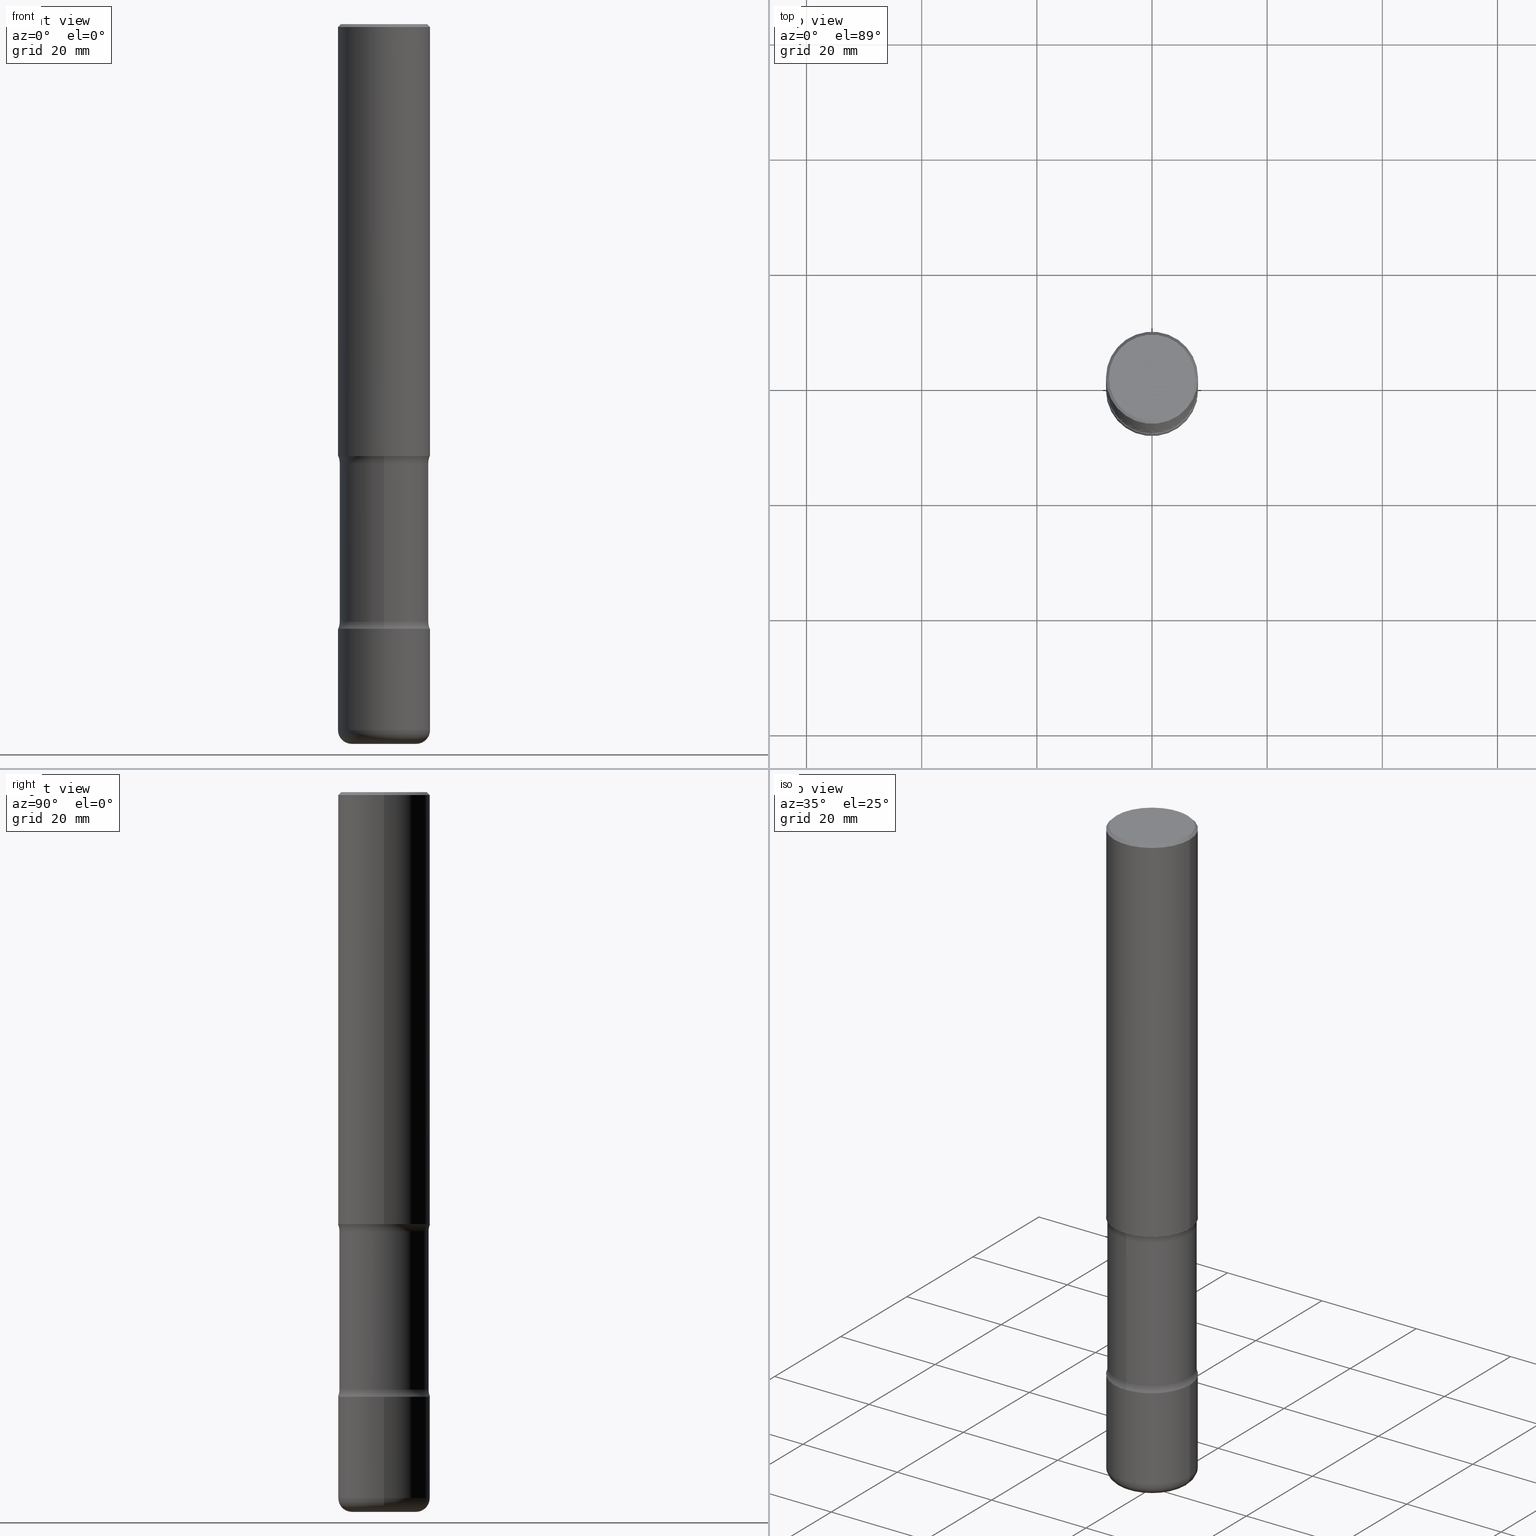
[diagram: canonical four-view strip — front | top / right | iso, engineering-drawing reading convention]
A machine part, canonical four-view strip (front | top / right | iso — engineering-drawing reading convention). The complete STEP part file that produces these views, byte-faithful:
ISO-10303-21;
HEADER;
FILE_DESCRIPTION (( 'STEP AP203' ),
    '1' );
FILE_NAME ('44968.STEP',
    '2024-03-02T04:07:08',
    ( '' ),
    ( '' ),
    'SwSTEP 2.0',
    'SolidWorks 2023',
    '' );
FILE_SCHEMA (( 'CONFIG_CONTROL_DESIGN' ));
ENDSEC;

DATA;
#1 = VERTEX_POINT ( 'NONE', #471 ) ;
#2 = APPROVAL_PERSON_ORGANIZATION ( #289, #233, #34 ) ;
#3 = CONICAL_SURFACE ( 'NONE', #410, 0.3149499999999998967, 0.7853981633974479459 ) ;
#4 = CARTESIAN_POINT ( 'NONE',  ( 7.220980290903470182E-29, -1.030964609733603853E-14, -2.952799999999999869 ) ) ;
#5 = EDGE_CURVE ( 'NONE', #423, #129, #125, .T. ) ;
#6 = CARTESIAN_POINT ( 'NONE',  ( 4.890937612370289799E-31, -6.982962677686315028E-17, -0.02000000000000006981 ) ) ;
#7 =( LENGTH_UNIT ( ) NAMED_UNIT ( * ) SI_UNIT ( $, .METRE. ) );
#8 = CARTESIAN_POINT ( 'NONE',  ( -0.2204500000000002846, -1.528629066534495470E-14, -4.826800000000001312 ) ) ;
#9 = CARTESIAN_POINT ( 'NONE',  ( 1.010932349788873450E-28, -1.443343470664368071E-14, -4.133899999999999686 ) ) ;
#10 = AXIS2_PLACEMENT_3D ( 'NONE', #6, #521, #130 ) ;
#11 = AXIS2_PLACEMENT_3D ( 'NONE', #26, #421, #418 ) ;
#12 = ORIENTED_EDGE ( 'NONE', *, *, #520, .F. ) ;
#13 = APPLICATION_PROTOCOL_DEFINITION ( 'international standard', 'config_control_design', 1994, #363 ) ;
#14 = ORIENTED_EDGE ( 'NONE', *, *, #100, .F. ) ;
#15 = FACE_OUTER_BOUND ( 'NONE', #491, .T. ) ;
#16 = ORIENTED_EDGE ( 'NONE', *, *, #226, .T. ) ;
#17 = VERTEX_POINT ( 'NONE', #243 ) ;
#18 = EDGE_CURVE ( 'NONE', #229, #518, #467, .T. ) ;
#19 = CIRCLE ( 'NONE', #357, 0.1250000000000000000 ) ;
#20 = ORGANIZATION ( 'UNSPECIFIED', 'UNSPECIFIED', '' ) ;
#21 = CARTESIAN_POINT ( 'NONE',  ( 1.213091465776199422E-28, -1.704510808787969270E-14, -4.921299999999998676 ) ) ;
#22 = CARTESIAN_POINT ( 'NONE',  ( -1.043851414335219820E-46, 1.490343170380447200E-32, 4.268512490100411279E-18 ) ) ;
#23 = APPROVAL_DATE_TIME ( #63, #233 ) ;
#24 = VERTEX_POINT ( 'NONE', #459 ) ;
#25 = PRODUCT_DEFINITION ( 'UNKNOWN', '', #186, #403 ) ;
#26 = CARTESIAN_POINT ( 'NONE',  ( 7.197422926421381501E-29, -1.068517127001083718E-14, -3.001672256956273710 ) ) ;
#27 = APPROVAL_STATUS ( 'not_yet_approved' ) ;
#28 = DIRECTION ( 'NONE',  ( 2.567425907890858451E-29, -3.316831827833398617E-15, -1.000000000000000000 ) ) ;
#29 = ADVANCED_FACE ( 'NONE', ( #156 ), #51, .F. ) ;
#30 = DIRECTION ( 'NONE',  ( 1.000000000000000000, -6.982962677686268288E-15, 4.883557194083114022E-29 ) ) ;
#31 = CARTESIAN_POINT ( 'NONE',  ( 7.202412656765479231E-29, -1.067802569216027239E-14, -3.001672256956273710 ) ) ;
#32 = CC_DESIGN_APPROVAL ( #494, ( #139 ) ) ;
#33 = CYLINDRICAL_SURFACE ( 'NONE', #455, 0.3149500000000000077 ) ;
#34 = APPROVAL_ROLE ( '' ) ;
#35 = CARTESIAN_POINT ( 'NONE',  ( 2.059624841783562880E-15, 0.2949499999999998234, -1.027678164646734974E-15 ) ) ;
#36 = FACE_OUTER_BOUND ( 'NONE', #269, .T. ) ;
#37 = CARTESIAN_POINT ( 'NONE',  ( 0.2204500000000002846, -1.872202123514471598E-14, -4.921300000000000452 ) ) ;
#38 = FACE_OUTER_BOUND ( 'NONE', #489, .T. ) ;
#39 = CARTESIAN_POINT ( 'NONE',  ( 9.989807918014305530E-29, -1.426279813349370412E-14, -4.085027743043726289 ) ) ;
#40 = CARTESIAN_POINT ( 'NONE',  ( 1.180378883369442130E-28, -1.685268212632809896E-14, -4.826800000000001312 ) ) ;
#41 = AXIS2_PLACEMENT_3D ( 'NONE', #417, #28, #158 ) ;
#42 = DIRECTION ( 'NONE',  ( 1.000000000000000000, -6.982962677686265922E-15, 0.000000000000000000 ) ) ;
#43 = LINE ( 'NONE', #220, #291 ) ;
#44 = ORIENTED_EDGE ( 'NONE', *, *, #189, .T. ) ;
#45 = CARTESIAN_POINT ( 'NONE',  ( 0.3149499999999998967, -2.230543471175006266E-15, -0.02000000000000006981 ) ) ;
#46 = ORIENTED_EDGE ( 'NONE', *, *, #296, .T. ) ;
#47 = EDGE_CURVE ( 'NONE', #536, #24, #19, .T. ) ;
#48 = ORIENTED_EDGE ( 'NONE', *, *, #466, .T. ) ;
#49 = AXIS2_PLACEMENT_3D ( 'NONE', #364, #103, #138 ) ;
#50 = DIRECTION ( 'NONE',  ( -2.445468806185136597E-29, 3.491481338843145583E-15, 1.000000000000000000 ) ) ;
#51 = TOROIDAL_SURFACE ( 'NONE', #439, 0.4300000000000000488, 0.1250000000000000000 ) ;
#52 = AXIS2_PLACEMENT_3D ( 'NONE', #198, #190, #113 ) ;
#53 = DIRECTION ( 'NONE',  ( 1.000000000000000000, 0.000000000000000000, 0.000000000000000000 ) ) ;
#54 = EDGE_CURVE ( 'NONE', #450, #108, #202, .T. ) ;
#55 = ORIENTED_EDGE ( 'NONE', *, *, #54, .F. ) ;
#56 =( CONVERSION_BASED_UNIT ( 'INCH', #131 ) LENGTH_UNIT ( ) NAMED_UNIT ( #481 ) );
#57 = EDGE_LOOP ( 'NONE', ( #228, #453, #61, #317 ) ) ;
#58 = ORIENTED_EDGE ( 'NONE', *, *, #492, .T. ) ;
#59 = ADVANCED_FACE ( 'NONE', ( #36 ), #3, .T. ) ;
#60 = COORDINATED_UNIVERSAL_TIME_OFFSET ( 5, 0, .BEHIND. ) ;
#61 = ORIENTED_EDGE ( 'NONE', *, *, #474, .T. ) ;
#62 = CIRCLE ( 'NONE', #356, 0.09449999999999980638 ) ;
#63 = DATE_AND_TIME ( #542, #118 ) ;
#64 = EDGE_CURVE ( 'NONE', #408, #262, #70, .T. ) ;
#65 = ORIENTED_EDGE ( 'NONE', *, *, #64, .T. ) ;
#66 = AXIS2_PLACEMENT_3D ( 'NONE', #97, #448, #318 ) ;
#67 = CIRCLE ( 'NONE', #553, 0.3149500000000003408 ) ;
#68 = DIRECTION ( 'NONE',  ( 6.982962677686265922E-15, 1.000000000000000000, -3.316831827833398617E-15 ) ) ;
#69 = SECURITY_CLASSIFICATION_LEVEL ( 'unclassified' ) ;
#70 = LINE ( 'NONE', #508, #477 ) ;
#71 = DIRECTION ( 'NONE',  ( 2.567425907890858451E-29, -3.316831827833398617E-15, -1.000000000000000000 ) ) ;
#72 = MANIFOLD_SOLID_BREP ( 'Body-Move/Copy2[4]', #375 ) ;
#73 = PERSON_AND_ORGANIZATION ( #472, #20 ) ;
#74 = CLOSED_SHELL ( 'NONE', ( #349, #59, #414, #442, #309, #267 ) ) ;
#75 = AXIS2_PLACEMENT_3D ( 'NONE', #39, #159, #300 ) ;
#76 = PERSON_AND_ORGANIZATION ( #472, #20 ) ;
#77 = CARTESIAN_POINT ( 'NONE',  ( 0.3149500000000001743, -1.663271880198097216E-14, -4.133899999999999686 ) ) ;
#78 = LINE ( 'NONE', #203, #152 ) ;
#79 = DIRECTION ( 'NONE',  ( 6.860497997771529985E-15, 1.000000000000000000, 0.000000000000000000 ) ) ;
#80 = APPROVAL_STATUS ( 'not_yet_approved' ) ;
#81 = CARTESIAN_POINT ( 'NONE',  ( 0.3149500000000002298, -1.250893019267332998E-14, -2.952799999999999869 ) ) ;
#82 = DIRECTION ( 'NONE',  ( -0.7071067811865472397, 2.468850131082253905E-15, -0.7071067811865477948 ) ) ;
#83 = EDGE_CURVE ( 'NONE', #365, #395, #552, .T. ) ;
#84 = DIRECTION ( 'NONE',  ( 2.567425907890858451E-29, -3.316831827833398617E-15, -1.000000000000000000 ) ) ;
#85 = CARTESIAN_POINT ( 'NONE',  ( 0.3149500000000001743, -1.905196622166539041E-14, -4.826800000000001312 ) ) ;
#86 = AXIS2_PLACEMENT_3D ( 'NONE', #482, #437, #559 ) ;
#87 = DIRECTION ( 'NONE',  ( 2.567425907890857890E-29, -3.316831827833398617E-15, -1.000000000000000000 ) ) ;
#88 = DIRECTION ( 'NONE',  ( 6.982962677686266711E-15, 1.000000000000000000, -3.582751467100673306E-15 ) ) ;
#89 = ORIENTED_EDGE ( 'NONE', *, *, #18, .F. ) ;
#90 = CC_DESIGN_PERSON_AND_ORGANIZATION_ASSIGNMENT ( #399, #452, ( #161 ) ) ;
#91 = DIRECTION ( 'NONE',  ( 1.000000000000000000, -6.982962677686268288E-15, 4.883557194083114022E-29 ) ) ;
#92 = ORIENTED_EDGE ( 'NONE', *, *, #510, .F. ) ;
#93 = TOROIDAL_SURFACE ( 'NONE', #164, 0.2204500000000002846, 0.09449999999999982025 ) ;
#94 = EDGE_CURVE ( 'NONE', #406, #450, #368, .T. ) ;
#95 = DIRECTION ( 'NONE',  ( 0.000000000000000000, 0.000000000000000000, 1.000000000000000000 ) ) ;
#96 = ORIENTED_EDGE ( 'NONE', *, *, #492, .F. ) ;
#97 = CARTESIAN_POINT ( 'NONE',  ( 0.000000000000000000, 0.000000000000000000, 0.000000000000000000 ) ) ;
#98 = ORIENTED_EDGE ( 'NONE', *, *, #5, .F. ) ;
#99 = EDGE_LOOP ( 'NONE', ( #374, #89 ) ) ;
#100 = EDGE_CURVE ( 'NONE', #1, #486, #322, .T. ) ;
#101 = DIRECTION ( 'NONE',  ( 1.000000000000000000, -6.982962677686266711E-15, 4.876176775795936353E-29 ) ) ;
#102 = ORIENTED_EDGE ( 'NONE', *, *, #373, .T. ) ;
#103 = DIRECTION ( 'NONE',  ( 2.567425907890858451E-29, -3.316831827833398617E-15, -1.000000000000000000 ) ) ;
#104 = ORIENTED_EDGE ( 'NONE', *, *, #324, .F. ) ;
#105 = CARTESIAN_POINT ( 'NONE',  ( 7.220980290903470182E-29, -1.030964609733603853E-14, -2.952799999999999869 ) ) ;
#106 = CIRCLE ( 'NONE', #476, 0.3149500000000002298 ) ;
#107 = FACE_OUTER_BOUND ( 'NONE', #440, .T. ) ;
#108 = VERTEX_POINT ( 'NONE', #538 ) ;
#109 = ADVANCED_FACE ( 'NONE', ( #282 ), #93, .T. ) ;
#110 = AXIS2_PLACEMENT_3D ( 'NONE', #167, #464, #422 ) ;
#111 = CARTESIAN_POINT ( 'NONE',  ( 7.076936758078842679E-29, -1.051592463478965167E-14, -2.952799999999999869 ) ) ;
#112 = DIRECTION ( 'NONE',  ( -2.445468806185136597E-29, 3.491481338843145583E-15, 1.000000000000000000 ) ) ;
#113 = DIRECTION ( 'NONE',  ( 6.860497997771531562E-15, 1.000000000000000000, 0.000000000000000000 ) ) ;
#114 = APPROVAL_DATE_TIME ( #336, #266 ) ;
#115 = DIRECTION ( 'NONE',  ( -1.000000000000000000, 6.982962677686265922E-15, -4.883557194083112340E-29 ) ) ;
#116 = CARTESIAN_POINT ( 'NONE',  ( 7.220980290903470182E-29, -1.030964609733603853E-14, -2.952799999999999869 ) ) ;
#117 = CIRCLE ( 'NONE', #428, 0.3149500000000001743 ) ;
#118 = LOCAL_TIME ( 23, 7, 8.000000000000000000, #407 ) ;
#119 = AXIS2_PLACEMENT_3D ( 'NONE', #31, #250, #246 ) ;
#120 = AXIS2_PLACEMENT_3D ( 'NONE', #433, #87, #216 ) ;
#121 = DIRECTION ( 'NONE',  ( -6.982962677686266711E-15, -1.000000000000000000, 3.491481338843145583E-15 ) ) ;
#122 = CARTESIAN_POINT ( 'NONE',  ( -2.160713844398043177E-15, -0.3149500000000144961, -4.133899999999998798 ) ) ;
#123 = DIRECTION ( 'NONE',  ( 1.000000000000000000, -6.982962677686260400E-15, 0.000000000000000000 ) ) ;
#124 = EDGE_CURVE ( 'NONE', #395, #262, #402, .T. ) ;
#125 = CIRCLE ( 'NONE', #110, 0.3149500000000001743 ) ;
#126 = ORIENTED_EDGE ( 'NONE', *, *, #510, .T. ) ;
#127 = DIRECTION ( 'NONE',  ( -2.445468806185136877E-29, 3.491481338843145188E-15, 1.000000000000000000 ) ) ;
#128 = CARTESIAN_POINT ( 'NONE',  ( -0.3149500000000001743, -1.340520407020945227E-14, -4.133899999999999686 ) ) ;
#129 = VERTEX_POINT ( 'NONE', #77 ) ;
#130 = DIRECTION ( 'NONE',  ( -1.000000000000000000, 6.982962677686265922E-15, 0.000000000000000000 ) ) ;
#131 = LENGTH_MEASURE_WITH_UNIT ( LENGTH_MEASURE( 0.02539999999999999897 ), #7 );
#132 = VECTOR ( 'NONE', #127, 39.37007874015748143 ) ;
#133 = CIRCLE ( 'NONE', #457, 0.09449999999999980638 ) ;
#134 = ORIENTED_EDGE ( 'NONE', *, *, #447, .T. ) ;
#135 = VERTEX_POINT ( 'NONE', #166 ) ;
#136 = ORIENTED_EDGE ( 'NONE', *, *, #124, .T. ) ;
#137 = AXIS2_PLACEMENT_3D ( 'NONE', #235, #419, #507 ) ;
#138 = DIRECTION ( 'NONE',  ( 6.982962677686265133E-15, 1.000000000000000000, -3.582751467100671728E-15 ) ) ;
#139 = SECURITY_CLASSIFICATION ( '', '', #69 ) ;
#140 = AXIS2_PLACEMENT_3D ( 'NONE', #40, #541, #91 ) ;
#141 = VERTEX_POINT ( 'NONE', #252 ) ;
#142 = APPLICATION_CONTEXT ( 'configuration controlled 3d designs of mechanical parts and assemblies' ) ;
#143 = CARTESIAN_POINT ( 'NONE',  ( -0.3149499999999998967, 2.129454468560425784E-15, -0.02000000000000006981 ) ) ;
#144 = ORIENTED_EDGE ( 'NONE', *, *, #513, .T. ) ;
#145 = ADVANCED_FACE ( 'NONE', ( #340 ), #173, .T. ) ;
#146 = DIRECTION ( 'NONE',  ( 1.000000000000000000, -6.982962677686267499E-15, 4.876053491004737710E-29 ) ) ;
#147 = PERSON_AND_ORGANIZATION ( #472, #20 ) ;
#148 = ORIENTED_EDGE ( 'NONE', *, *, #474, .F. ) ;
#149 = DIRECTION ( 'NONE',  ( 1.000000000000000000, -6.982962677686265922E-15, 4.876176775795935793E-29 ) ) ;
#150 = PERSON_AND_ORGANIZATION_ROLE ( 'design_supplier' ) ;
#151 = DIRECTION ( 'NONE',  ( 1.000000000000000000, -6.860497997771530774E-15, 4.842937719270450124E-29 ) ) ;
#152 = VECTOR ( 'NONE', #82, 39.37007874015748143 ) ;
#153 = CARTESIAN_POINT ( 'NONE',  ( 7.197422926421381501E-29, -1.068517127001083718E-14, -3.001672256956273710 ) ) ;
#154 = DIRECTION ( 'NONE',  ( -2.445468806185136597E-29, 3.491481338843145583E-15, 1.000000000000000000 ) ) ;
#155 = COORDINATED_UNIVERSAL_TIME_OFFSET ( 5, 0, .BEHIND. ) ;
#156 = FACE_OUTER_BOUND ( 'NONE', #57, .T. ) ;
#157 = CARTESIAN_POINT ( 'NONE',  ( -2.092451889320195532E-15, -0.3050000000000170908, -4.921299999999997787 ) ) ;
#158 = DIRECTION ( 'NONE',  ( 6.982962677686264344E-15, 1.000000000000000000, -3.469564049740291192E-15 ) ) ;
#159 = DIRECTION ( 'NONE',  ( 2.567425907890858451E-29, -3.316831827833398617E-15, -1.000000000000000000 ) ) ;
#160 = ORIENTED_EDGE ( 'NONE', *, *, #396, .F. ) ;
#161 = PRODUCT ( '44968', '44968', '', ( #488 ) ) ;
#162 = CARTESIAN_POINT ( 'NONE',  ( 0.3149500000000000077, -2.199284095337289871E-15, 1.535751875536930130E-29 ) ) ;
#163 = AXIS2_PLACEMENT_3D ( 'NONE', #169, #259, #209 ) ;
#164 = AXIS2_PLACEMENT_3D ( 'NONE', #506, #112, #30 ) ;
#165 = CIRCLE ( 'NONE', #137, 0.3049999999999999933 ) ;
#166 = CARTESIAN_POINT ( 'NONE',  ( 2.199284095337391634E-15, 0.3149499999999856859, -4.133900000000000574 ) ) ;
#167 = CARTESIAN_POINT ( 'NONE',  ( 1.010932349788873450E-28, -1.443343470664368071E-14, -4.133899999999999686 ) ) ;
#168 = DIRECTION ( 'NONE',  ( 2.567425907890858451E-29, -3.316831827833398617E-15, -1.000000000000000000 ) ) ;
#169 = CARTESIAN_POINT ( 'NONE',  ( 1.010932349788873450E-28, -1.443343470664368071E-14, -4.133899999999999686 ) ) ;
#170 = CARTESIAN_POINT ( 'NONE',  ( -2.203384679623131718E-28, -6.597099102745951621E-14, -4.921299999999999564 ) ) ;
#171 = ADVANCED_FACE ( 'NONE', ( #377 ), #271, .F. ) ;
#172 = CARTESIAN_POINT ( 'NONE',  ( 3.002673951405194792E-15, 0.4299999999999857825, -4.085027743043728066 ) ) ;
#173 = PLANE ( 'NONE',  #430 ) ;
#174 = PRODUCT_RELATED_PRODUCT_CATEGORY ( 'detail', '', ( #161 ) ) ;
#175 = ORIENTED_EDGE ( 'NONE', *, *, #527, .F. ) ;
#176 = FACE_OUTER_BOUND ( 'NONE', #390, .T. ) ;
#177 =( NAMED_UNIT ( * ) SI_UNIT ( $, .STERADIAN. ) SOLID_ANGLE_UNIT ( ) );
#178 = ORIENTED_EDGE ( 'NONE', *, *, #454, .F. ) ;
#179 = ORIENTED_EDGE ( 'NONE', *, *, #286, .T. ) ;
#180 = TOROIDAL_SURFACE ( 'NONE', #281, 0.4299999999999999933, 0.1249999999999999029 ) ;
#181 = ORIENTED_EDGE ( 'NONE', *, *, #286, .F. ) ;
#182 = EDGE_CURVE ( 'NONE', #450, #141, #420, .T. ) ;
#183 = ORIENTED_EDGE ( 'NONE', *, *, #226, .F. ) ;
#184 = DIRECTION ( 'NONE',  ( -2.445468806185136597E-29, 3.491481338843145583E-15, 1.000000000000000000 ) ) ;
#185 = EDGE_LOOP ( 'NONE', ( #12, #241, #46, #148 ) ) ;
#186 = PRODUCT_DEFINITION_FORMATION_WITH_SPECIFIED_SOURCE ( 'ANY', '', #161, .NOT_KNOWN. ) ;
#187 = CIRCLE ( 'NONE', #502, 0.3149500000000003408 ) ;
#188 = ORIENTED_EDGE ( 'NONE', *, *, #353, .T. ) ;
#189 = EDGE_CURVE ( 'NONE', #262, #395, #485, .T. ) ;
#190 = DIRECTION ( 'NONE',  ( 1.000000000000000000, -6.860497997771530774E-15, 4.842937719270450124E-29 ) ) ;
#191 = PERSON_AND_ORGANIZATION_ROLE ( 'creator' ) ;
#192 = EDGE_LOOP ( 'NONE', ( #227, #413 ) ) ;
#193 = APPROVAL_ROLE ( '' ) ;
#194 = CYLINDRICAL_SURFACE ( 'NONE', #409, 0.3050000000000000488 ) ;
#195 = CARTESIAN_POINT ( 'NONE',  ( 4.890937612370289799E-31, -6.982962677686315028E-17, -0.02000000000000006981 ) ) ;
#196 = FACE_OUTER_BOUND ( 'NONE', #529, .T. ) ;
#197 = ORIENTED_EDGE ( 'NONE', *, *, #64, .F. ) ;
#198 = CARTESIAN_POINT ( 'NONE',  ( -2.950014139041686281E-15, -0.4300000000000106515, -3.001672256956271934 ) ) ;
#199 = CC_DESIGN_APPROVAL ( #233, ( #186 ) ) ;
#200 = APPROVAL_ROLE ( '' ) ;
#201 = CARTESIAN_POINT ( 'NONE',  ( 1.203488563587891594E-28, -1.718262711284877655E-14, -4.921300000000000452 ) ) ;
#202 = CIRCLE ( 'NONE', #223, 0.1249999999999999029 ) ;
#203 = CARTESIAN_POINT ( 'NONE',  ( -0.3149499999999998967, 2.129454468560425784E-15, -0.02000000000000006981 ) ) ;
#204 = PLANE ( 'NONE',  #441 ) ;
#205 = ADVANCED_FACE ( 'NONE', ( #249 ), #258, .F. ) ;
#206 = DIRECTION ( 'NONE',  ( 2.445468806185136597E-29, -3.491481338843145583E-15, -1.000000000000000000 ) ) ;
#207 = CC_DESIGN_DATE_AND_TIME_ASSIGNMENT ( #208, #251, ( #139 ) ) ;
#208 = DATE_AND_TIME ( #294, #465 ) ;
#209 = DIRECTION ( 'NONE',  ( -1.000000000000000000, 6.982962677686265922E-15, -4.876176775795935793E-29 ) ) ;
#210 = DIRECTION ( 'NONE',  ( 2.567425907890858451E-29, -3.316831827833398617E-15, -1.000000000000000000 ) ) ;
#211 = CARTESIAN_POINT ( 'NONE',  ( 0.2204500000000002846, -1.839207624862403839E-14, -4.826800000000001312 ) ) ;
#212 = CARTESIAN_POINT ( 'NONE',  ( 9.989807918014305530E-29, -1.426279813349370412E-14, -4.085027743043726289 ) ) ;
#213 = CIRCLE ( 'NONE', #265, 0.3149500000000001743 ) ;
#214 = DIRECTION ( 'NONE',  ( 2.567425907890858451E-29, -3.316831827833398617E-15, -1.000000000000000000 ) ) ;
#215 = EDGE_CURVE ( 'NONE', #486, #262, #78, .T. ) ;
#216 = DIRECTION ( 'NONE',  ( 6.982962677686265922E-15, 1.000000000000000000, -3.316831827833398617E-15 ) ) ;
#217 = DIRECTION ( 'NONE',  ( 2.567425907890858451E-29, -3.316831827833398617E-15, -1.000000000000000000 ) ) ;
#218 = ORIENTED_EDGE ( 'NONE', *, *, #324, .T. ) ;
#219 = DIRECTION ( 'NONE',  ( 0.7071067811865472397, -7.319954787623254468E-15, -0.7071067811865477948 ) ) ;
#220 = CARTESIAN_POINT ( 'NONE',  ( 0.3149500000000001743, -2.199284095337290660E-15, 1.535751875536930690E-29 ) ) ;
#221 = CARTESIAN_POINT ( 'NONE',  ( 1.010932349788873450E-28, -1.443343470664368071E-14, -4.133899999999999686 ) ) ;
#222 = CIRCLE ( 'NONE', #382, 0.3149500000000001743 ) ;
#223 = AXIS2_PLACEMENT_3D ( 'NONE', #285, #115, #253 ) ;
#224 = CARTESIAN_POINT ( 'NONE',  ( -2.126582866859160770E-15, -0.3050000000000108180, -3.001672256956272378 ) ) ;
#225 = AXIS2_PLACEMENT_3D ( 'NONE', #451, #444, #101 ) ;
#226 = EDGE_CURVE ( 'NONE', #408, #365, #393, .T. ) ;
#227 = ORIENTED_EDGE ( 'NONE', *, *, #315, .T. ) ;
#228 = ORIENTED_EDGE ( 'NONE', *, *, #47, .F. ) ;
#229 = VERTEX_POINT ( 'NONE', #327 ) ;
#230 = AXIS2_PLACEMENT_3D ( 'NONE', #361, #95, #53 ) ;
#231 = ADVANCED_FACE ( 'NONE', ( #107 ), #306, .T. ) ;
#232 = ORIENTED_EDGE ( 'NONE', *, *, #215, .T. ) ;
#233 = APPROVAL ( #27, 'UNSPECIFIED' ) ;
#234 = ORIENTED_EDGE ( 'NONE', *, *, #83, .F. ) ;
#235 = CARTESIAN_POINT ( 'NONE',  ( 9.983847599202101310E-29, -1.427133364927305841E-14, -4.085027743043726289 ) ) ;
#236 = CALENDAR_DATE ( 2024, 1, 3 ) ;
#237 = EDGE_LOOP ( 'NONE', ( #539, #480 ) ) ;
#238 = VECTOR ( 'NONE', #219, 39.37007874015748143 ) ;
#239 = AXIS2_PLACEMENT_3D ( 'NONE', #463, #499, #341 ) ;
#240 = LOCAL_TIME ( 23, 7, 8.000000000000000000, #155 ) ;
#241 = ORIENTED_EDGE ( 'NONE', *, *, #47, .T. ) ;
#242 = CALENDAR_DATE ( 2024, 1, 3 ) ;
#243 = CARTESIAN_POINT ( 'NONE',  ( -0.3149500000000001743, -1.461482778005166298E-14, -4.826800000000001312 ) ) ;
#244 = PERSON_AND_ORGANIZATION_ROLE ( 'classification_officer' ) ;
#245 = DIRECTION ( 'NONE',  ( 6.982962677686265133E-15, 1.000000000000000000, -3.582751467100672517E-15 ) ) ;
#246 = DIRECTION ( 'NONE',  ( 6.982962677686265133E-15, 1.000000000000000000, -3.582751467100671728E-15 ) ) ;
#247 = DIRECTION ( 'NONE',  ( 6.982962677686265922E-15, 1.000000000000000000, -3.316831827833398617E-15 ) ) ;
#248 = ADVANCED_FACE ( 'NONE', ( #196 ), #398, .T. ) ;
#249 = FACE_OUTER_BOUND ( 'NONE', #497, .T. ) ;
#250 = DIRECTION ( 'NONE',  ( 2.567425907890858451E-29, -3.316831827833398617E-15, -1.000000000000000000 ) ) ;
#251 = DATE_TIME_ROLE ( 'classification_date' ) ;
#252 = CARTESIAN_POINT ( 'NONE',  ( 2.129803616694410664E-15, 0.3049999999999857270, -4.085027743043728066 ) ) ;
#253 = DIRECTION ( 'NONE',  ( -6.982962677686264344E-15, -1.000000000000000000, 0.000000000000000000 ) ) ;
#254 = DATE_AND_TIME ( #504, #456 ) ;
#255 = FACE_OUTER_BOUND ( 'NONE', #400, .T. ) ;
#256 = EDGE_CURVE ( 'NONE', #229, #17, #133, .T. ) ;
#257 = CC_DESIGN_PERSON_AND_ORGANIZATION_ASSIGNMENT ( #328, #150, ( #186 ) ) ;
#258 = TOROIDAL_SURFACE ( 'NONE', #11, 0.4299999999999999933, 0.1249999999999999029 ) ;
#259 = DIRECTION ( 'NONE',  ( 2.438088387897960049E-29, -3.491481338843145188E-15, -1.000000000000000000 ) ) ;
#260 = DIRECTION ( 'NONE',  ( 2.438088387897960049E-29, -3.491481338843145188E-15, -1.000000000000000000 ) ) ;
#261 = CARTESIAN_POINT ( 'NONE',  ( 9.983847599202101310E-29, -1.427133364927305841E-14, -4.085027743043726289 ) ) ;
#262 = VERTEX_POINT ( 'NONE', #143 ) ;
#263 = ADVANCED_FACE ( 'NONE', ( #354 ), #525, .F. ) ;
#264 = ORIENTED_EDGE ( 'NONE', *, *, #396, .T. ) ;
#265 = AXIS2_PLACEMENT_3D ( 'NONE', #221, #214, #385 ) ;
#266 = APPROVAL ( #283, 'UNSPECIFIED' ) ;
#267 = ADVANCED_FACE ( 'NONE', ( #15 ), #360, .T. ) ;
#268 = UNCERTAINTY_MEASURE_WITH_UNIT (LENGTH_MEASURE( 1.000000000000000082E-05 ), #56, 'distance_accuracy_value', 'NONE');
#269 = EDGE_LOOP ( 'NONE', ( #14, #264, #136, #496 ) ) ;
#270 = CC_DESIGN_PERSON_AND_ORGANIZATION_ASSIGNMENT ( #147, #191, ( #186 ) ) ;
#271 = TOROIDAL_SURFACE ( 'NONE', #75, 0.4300000000000000488, 0.1250000000000000000 ) ;
#272 = DIRECTION ( 'NONE',  ( -6.982962677686265922E-15, -1.000000000000000000, 3.316831827833398617E-15 ) ) ;
#273 = ORIENTED_EDGE ( 'NONE', *, *, #18, .T. ) ;
#274 = DIRECTION ( 'NONE',  ( 1.000000000000000000, -6.982962677686272233E-15, 0.000000000000000000 ) ) ;
#275 = EDGE_LOOP ( 'NONE', ( #404, #183 ) ) ;
#276 = CARTESIAN_POINT ( 'NONE',  ( 1.203488563587891594E-28, -1.718262711284877655E-14, -4.921300000000000452 ) ) ;
#277 = EDGE_CURVE ( 'NONE', #518, #229, #468, .T. ) ;
#278 = DATE_AND_TIME ( #236, #314 ) ;
#279 = EDGE_LOOP ( 'NONE', ( #92, #334, #371, #533 ) ) ;
#280 = APPROVAL_DATE_TIME ( #254, #494 ) ;
#281 = AXIS2_PLACEMENT_3D ( 'NONE', #153, #71, #68 ) ;
#282 = FACE_OUTER_BOUND ( 'NONE', #319, .T. ) ;
#283 = APPROVAL_STATUS ( 'not_yet_approved' ) ;
#284 = PLANE ( 'NONE',  #293 ) ;
#285 = CARTESIAN_POINT ( 'NONE',  ( 3.002673951405166393E-15, 0.4299999999999893352, -3.001672256956275042 ) ) ;
#286 = EDGE_CURVE ( 'NONE', #450, #406, #526, .T. ) ;
#287 = DIRECTION ( 'NONE',  ( -2.438088387897960049E-29, 3.491481338843145188E-15, 1.000000000000000000 ) ) ;
#288 = DIRECTION ( 'NONE',  ( -1.000000000000000000, 6.982962677686265922E-15, -4.876176775795935793E-29 ) ) ;
#289 = PERSON_AND_ORGANIZATION ( #472, #20 ) ;
#290 = DIRECTION ( 'NONE',  ( -2.445468806185136877E-29, 3.491481338843145188E-15, 1.000000000000000000 ) ) ;
#291 = VECTOR ( 'NONE', #427, 39.37007874015748143 ) ;
#292 = DIRECTION ( 'NONE',  ( -2.445468806185136597E-29, 3.491481338843145583E-15, 1.000000000000000000 ) ) ;
#293 = AXIS2_PLACEMENT_3D ( 'NONE', #105, #287, #149 ) ;
#294 = CALENDAR_DATE ( 2024, 1, 3 ) ;
#295 = DIRECTION ( 'NONE',  ( -2.445468806185136597E-29, 3.491481338843145583E-15, 1.000000000000000000 ) ) ;
#296 = EDGE_CURVE ( 'NONE', #24, #141, #165, .T. ) ;
#297 = DIRECTION ( 'NONE',  ( 1.000000000000000000, -6.982962677686265922E-15, 0.000000000000000000 ) ) ;
#298 = ORIENTED_EDGE ( 'NONE', *, *, #373, .F. ) ;
#299 = DIRECTION ( 'NONE',  ( 2.567425907890858451E-29, -3.316831827833398617E-15, -1.000000000000000000 ) ) ;
#300 = DIRECTION ( 'NONE',  ( 6.982962677686265922E-15, 1.000000000000000000, -3.316831827833398617E-15 ) ) ;
#301 = DIRECTION ( 'NONE',  ( -6.982962677686266711E-15, -1.000000000000000000, 0.000000000000000000 ) ) ;
#302 = ADVANCED_FACE ( 'NONE', ( #412 ), #194, .T. ) ;
#303 = DIRECTION ( 'NONE',  ( -2.445468806185136597E-29, 3.491481338843145583E-15, 1.000000000000000000 ) ) ;
#304 = CARTESIAN_POINT ( 'NONE',  ( -0.2949499999999998234, 2.094539655171994135E-15, 4.268512490085885145E-18 ) ) ;
#305 = AXIS2_PLACEMENT_3D ( 'NONE', #560, #516, #551 ) ;
#306 = TOROIDAL_SURFACE ( 'NONE', #140, 0.2204500000000002846, 0.09449999999999982025 ) ;
#307 = DIRECTION ( 'NONE',  ( 1.000000000000000000, -6.982962677686265922E-15, 0.000000000000000000 ) ) ;
#308 = EDGE_LOOP ( 'NONE', ( #355, #370 ) ) ;
#309 = ADVANCED_FACE ( 'NONE', ( #540 ), #284, .F. ) ;
#310 = CYLINDRICAL_SURFACE ( 'NONE', #86, 0.3050000000000000488 ) ;
#311 = VERTEX_POINT ( 'NONE', #376 ) ;
#312 = CIRCLE ( 'NONE', #534, 0.3049999999999999933 ) ;
#313 = AXIS2_PLACEMENT_3D ( 'NONE', #116, #292, #333 ) ;
#314 = LOCAL_TIME ( 23, 7, 8.000000000000000000, #60 ) ;
#315 = EDGE_CURVE ( 'NONE', #135, #536, #484, .T. ) ;
#316 =( NAMED_UNIT ( * ) PLANE_ANGLE_UNIT ( ) SI_UNIT ( $, .RADIAN. ) );
#317 = ORIENTED_EDGE ( 'NONE', *, *, #424, .T. ) ;
#318 = DIRECTION ( 'NONE',  ( 1.000000000000000000, -6.982962677686265922E-15, 4.876176775795935232E-29 ) ) ;
#319 = EDGE_LOOP ( 'NONE', ( #392, #273, #134, #96 ) ) ;
#320 = DIRECTION ( 'NONE',  ( -2.445468806185136877E-29, 3.491481338843145188E-15, 1.000000000000000000 ) ) ;
#321 = ORIENTED_EDGE ( 'NONE', *, *, #483, .F. ) ;
#322 = CIRCLE ( 'NONE', #511, 0.2949499999999998234 ) ;
#323 = EDGE_LOOP ( 'NONE', ( #179, #126, #342, #350 ) ) ;
#324 = EDGE_CURVE ( 'NONE', #406, #311, #330, .T. ) ;
#325 = ORIENTED_EDGE ( 'NONE', *, *, #537, .T. ) ;
#326 = SHAPE_DEFINITION_REPRESENTATION ( #347, #522 ) ;
#327 = CARTESIAN_POINT ( 'NONE',  ( -0.2204500000000002846, -1.511553171595864605E-14, -4.921300000000000452 ) ) ;
#328 = PERSON_AND_ORGANIZATION ( #472, #20 ) ;
#329 = ORIENTED_EDGE ( 'NONE', *, *, #256, .T. ) ;
#330 = CIRCLE ( 'NONE', #52, 0.1249999999999999029 ) ;
#331 = FACE_OUTER_BOUND ( 'NONE', #523, .T. ) ;
#332 = AXIS2_PLACEMENT_3D ( 'NONE', #9, #358, #272 ) ;
#333 = DIRECTION ( 'NONE',  ( 1.000000000000000000, -6.982962677686264344E-15, 0.000000000000000000 ) ) ;
#334 = ORIENTED_EDGE ( 'NONE', *, *, #94, .T. ) ;
#335 = ADVANCED_FACE ( 'NONE', ( #546 ), #180, .F. ) ;
#336 = DATE_AND_TIME ( #242, #240 ) ;
#337 = DIRECTION ( 'NONE',  ( -1.000000000000000000, 6.982962677686265922E-15, 0.000000000000000000 ) ) ;
#338 = CARTESIAN_POINT ( 'NONE',  ( 2.129803616694383843E-15, 0.3049999999999893907, -3.001672256956274598 ) ) ;
#339 = CONICAL_SURFACE ( 'NONE', #10, 0.3149499999999998967, 0.7853981633974479459 ) ;
#340 = FACE_OUTER_BOUND ( 'NONE', #99, .T. ) ;
#341 = DIRECTION ( 'NONE',  ( 1.000000000000000000, -6.982962677686265922E-15, 0.000000000000000000 ) ) ;
#342 = ORIENTED_EDGE ( 'NONE', *, *, #424, .F. ) ;
#343 = AXIS2_PLACEMENT_3D ( 'NONE', #515, #391, #557 ) ;
#344 = DIRECTION ( 'NONE',  ( 6.982962677686265922E-15, 1.000000000000000000, -3.469564049740289220E-15 ) ) ;
#345 = LINE ( 'NONE', #45, #238 ) ;
#346 = DIRECTION ( 'NONE',  ( 2.438088387897960049E-29, -3.491481338843145188E-15, -1.000000000000000000 ) ) ;
#347 = PRODUCT_DEFINITION_SHAPE ( 'NONE', 'NONE',  #25 ) ;
#348 = CARTESIAN_POINT ( 'NONE',  ( 0.000000000000000000, 0.000000000000000000, 0.000000000000000000 ) ) ;
#349 = ADVANCED_FACE ( 'NONE', ( #331 ), #33, .T. ) ;
#350 = ORIENTED_EDGE ( 'NONE', *, *, #182, .F. ) ;
#351 = AXIS2_PLACEMENT_3D ( 'NONE', #201, #379, #416 ) ;
#352 = ORIENTED_EDGE ( 'NONE', *, *, #124, .F. ) ;
#353 = EDGE_CURVE ( 'NONE', #108, #311, #67, .T. ) ;
#354 = FACE_OUTER_BOUND ( 'NONE', #192, .T. ) ;
#355 = ORIENTED_EDGE ( 'NONE', *, *, #483, .T. ) ;
#356 = AXIS2_PLACEMENT_3D ( 'NONE', #211, #121, #123 ) ;
#357 = AXIS2_PLACEMENT_3D ( 'NONE', #543, #151, #79 ) ;
#358 = DIRECTION ( 'NONE',  ( -2.567425907890857890E-29, 3.316831827833398617E-15, 1.000000000000000000 ) ) ;
#359 = ORIENTED_EDGE ( 'NONE', *, *, #466, .F. ) ;
#360 = CYLINDRICAL_SURFACE ( 'NONE', #225, 0.3149500000000000077 ) ;
#361 = CARTESIAN_POINT ( 'NONE',  ( 0.000000000000000000, 0.000000000000000000, 0.000000000000000000 ) ) ;
#362 = ORIENTED_EDGE ( 'NONE', *, *, #277, .T. ) ;
#363 = APPLICATION_CONTEXT ( 'configuration controlled 3d designs of mechanical parts and assemblies' ) ;
#364 = CARTESIAN_POINT ( 'NONE',  ( 7.202412656765479231E-29, -1.067802569216027239E-14, -3.001672256956273710 ) ) ;
#365 = VERTEX_POINT ( 'NONE', #81 ) ;
#366 = ADVANCED_FACE ( 'NONE', ( #519 ), #475, .F. ) ;
#367 = CIRCLE ( 'NONE', #305, 0.2949499999999998234 ) ;
#368 = CIRCLE ( 'NONE', #119, 0.3050000000000001044 ) ;
#369 = AXIS2_PLACEMENT_3D ( 'NONE', #276, #184, #274 ) ;
#370 = ORIENTED_EDGE ( 'NONE', *, *, #100, .T. ) ;
#371 = ORIENTED_EDGE ( 'NONE', *, *, #182, .T. ) ;
#372 = COORDINATED_UNIVERSAL_TIME_OFFSET ( 5, 0, .BEHIND. ) ;
#373 = EDGE_CURVE ( 'NONE', #17, #423, #381, .T. ) ;
#374 = ORIENTED_EDGE ( 'NONE', *, *, #277, .F. ) ;
#375 = CLOSED_SHELL ( 'NONE', ( #405, #171, #205, #335, #366, #263, #29, #302 ) ) ;
#376 = CARTESIAN_POINT ( 'NONE',  ( -2.160713844398075521E-15, -0.3149500000000107769, -2.952799999999998537 ) ) ;
#377 = FACE_OUTER_BOUND ( 'NONE', #185, .T. ) ;
#378 = CARTESIAN_POINT ( 'NONE',  ( 1.180378883369442130E-28, -1.685268212632809896E-14, -4.826800000000001312 ) ) ;
#379 = DIRECTION ( 'NONE',  ( -2.445468806185136597E-29, 3.491481338843145583E-15, 1.000000000000000000 ) ) ;
#380 = ADVANCED_FACE ( 'NONE', ( #38 ), #558, .F. ) ;
#381 = LINE ( 'NONE', #386, #132 ) ;
#382 = AXIS2_PLACEMENT_3D ( 'NONE', #378, #509, #297 ) ;
#383 = DIRECTION ( 'NONE',  ( -1.000000000000000000, 6.982962677686265922E-15, -4.883557194083112340E-29 ) ) ;
#384 = AXIS2_PLACEMENT_3D ( 'NONE', #348, #50, #431 ) ;
#385 = DIRECTION ( 'NONE',  ( 6.982962677686264344E-15, 1.000000000000000000, -3.469564049740291192E-15 ) ) ;
#386 = CARTESIAN_POINT ( 'NONE',  ( -0.3149500000000001743, 2.237854346276436774E-15, -1.549218606675783237E-29 ) ) ;
#387 = DIRECTION ( 'NONE',  ( -2.445468806185136597E-29, 3.491481338843145583E-15, 1.000000000000000000 ) ) ;
#388 = FACE_OUTER_BOUND ( 'NONE', #323, .T. ) ;
#389 = ADVANCED_FACE ( 'NONE', ( #255 ), #425, .T. ) ;
#390 = EDGE_LOOP ( 'NONE', ( #160, #321, #232, #44 ) ) ;
#391 = DIRECTION ( 'NONE',  ( -2.445468806185136597E-29, 3.491481338843145583E-15, 1.000000000000000000 ) ) ;
#392 = ORIENTED_EDGE ( 'NONE', *, *, #256, .F. ) ;
#393 = CIRCLE ( 'NONE', #313, 0.3149500000000002298 ) ;
#394 = CARTESIAN_POINT ( 'NONE',  ( -0.3149500000000002298, -2.951883515780010590E-15, -2.952799999999999869 ) ) ;
#395 = VERTEX_POINT ( 'NONE', #478 ) ;
#396 = EDGE_CURVE ( 'NONE', #1, #395, #345, .T. ) ;
#397 = ORIENTED_EDGE ( 'NONE', *, *, #94, .F. ) ;
#398 = CYLINDRICAL_SURFACE ( 'NONE', #66, 0.3149500000000001743 ) ;
#399 = PERSON_AND_ORGANIZATION ( #472, #20 ) ;
#400 = EDGE_LOOP ( 'NONE', ( #298, #58, #48, #98 ) ) ;
#401 =( GEOMETRIC_REPRESENTATION_CONTEXT ( 3 ) GLOBAL_UNCERTAINTY_ASSIGNED_CONTEXT ( ( #268 ) ) GLOBAL_UNIT_ASSIGNED_CONTEXT ( ( #56, #316, #177 ) ) REPRESENTATION_CONTEXT ( 'NONE', 'WORKASPACE' ) );
#402 = CIRCLE ( 'NONE', #517, 0.3149499999999998967 ) ;
#403 = DESIGN_CONTEXT ( 'detailed design', #142, 'design' ) ;
#404 = ORIENTED_EDGE ( 'NONE', *, *, #537, .F. ) ;
#405 = ADVANCED_FACE ( 'NONE', ( #388 ), #310, .T. ) ;
#406 = VERTEX_POINT ( 'NONE', #224 ) ;
#407 = COORDINATED_UNIVERSAL_TIME_OFFSET ( 5, 0, .BEHIND. ) ;
#408 = VERTEX_POINT ( 'NONE', #394 ) ;
#409 = AXIS2_PLACEMENT_3D ( 'NONE', #21, #550, #245 ) ;
#410 = AXIS2_PLACEMENT_3D ( 'NONE', #461, #206, #337 ) ;
#411 = VECTOR ( 'NONE', #299, 39.37007874015748143 ) ;
#412 = FACE_OUTER_BOUND ( 'NONE', #279, .T. ) ;
#413 = ORIENTED_EDGE ( 'NONE', *, *, #520, .T. ) ;
#414 = ADVANCED_FACE ( 'NONE', ( #176 ), #339, .T. ) ;
#415 = DATE_TIME_ROLE ( 'creation_date' ) ;
#416 = DIRECTION ( 'NONE',  ( 1.000000000000000000, -6.982962677686272233E-15, 0.000000000000000000 ) ) ;
#417 = CARTESIAN_POINT ( 'NONE',  ( 1.010932349788873450E-28, -1.443343470664368071E-14, -4.133899999999999686 ) ) ;
#418 = DIRECTION ( 'NONE',  ( 6.982962677686265922E-15, 1.000000000000000000, -3.316831827833398617E-15 ) ) ;
#419 = DIRECTION ( 'NONE',  ( 2.567425907890858451E-29, -3.316831827833398617E-15, -1.000000000000000000 ) ) ;
#420 = LINE ( 'NONE', #426, #503 ) ;
#421 = DIRECTION ( 'NONE',  ( 2.567425907890858451E-29, -3.316831827833398617E-15, -1.000000000000000000 ) ) ;
#422 = DIRECTION ( 'NONE',  ( 1.000000000000000000, -6.982962677686265922E-15, 0.000000000000000000 ) ) ;
#423 = VERTEX_POINT ( 'NONE', #128 ) ;
#424 = EDGE_CURVE ( 'NONE', #141, #24, #312, .T. ) ;
#425 = CYLINDRICAL_SURFACE ( 'NONE', #384, 0.3149500000000001743 ) ;
#426 = CARTESIAN_POINT ( 'NONE',  ( 2.129803616694432752E-15, 0.3049999999999830069, -4.921299999999999564 ) ) ;
#427 = DIRECTION ( 'NONE',  ( -2.445468806185136877E-29, 3.491481338843145188E-15, 1.000000000000000000 ) ) ;
#428 = AXIS2_PLACEMENT_3D ( 'NONE', #429, #387, #307 ) ;
#429 = CARTESIAN_POINT ( 'NONE',  ( 1.180378883369442130E-28, -1.685268212632809896E-14, -4.826800000000001312 ) ) ;
#430 = AXIS2_PLACEMENT_3D ( 'NONE', #170, #346, #288 ) ;
#431 = DIRECTION ( 'NONE',  ( 1.000000000000000000, -6.982962677686265922E-15, 4.876176775795935232E-29 ) ) ;
#432 = EDGE_LOOP ( 'NONE', ( #104, #181, #443, #188 ) ) ;
#433 = CARTESIAN_POINT ( 'NONE',  ( 7.220980290903470182E-29, -1.030964609733603853E-14, -2.952799999999999869 ) ) ;
#434 = CC_DESIGN_PERSON_AND_ORGANIZATION_ASSIGNMENT ( #76, #244, ( #139 ) ) ;
#435 = DIRECTION ( 'NONE',  ( 6.982962677686265922E-15, 1.000000000000000000, -3.469564049740289220E-15 ) ) ;
#436 = ORIENTED_EDGE ( 'NONE', *, *, #189, .F. ) ;
#437 = DIRECTION ( 'NONE',  ( 2.567425907890858451E-29, -3.316831827833398617E-15, -1.000000000000000000 ) ) ;
#438 = APPROVAL_PERSON_ORGANIZATION ( #470, #494, #193 ) ;
#439 = AXIS2_PLACEMENT_3D ( 'NONE', #212, #548, #247 ) ;
#440 = EDGE_LOOP ( 'NONE', ( #362, #329, #178, #501 ) ) ;
#441 = AXIS2_PLACEMENT_3D ( 'NONE', #35, #260, #514 ) ;
#442 = ADVANCED_FACE ( 'NONE', ( #469 ), #204, .F. ) ;
#443 = ORIENTED_EDGE ( 'NONE', *, *, #54, .T. ) ;
#444 = DIRECTION ( 'NONE',  ( -2.445468806185136597E-29, 3.491481338843145583E-15, 1.000000000000000000 ) ) ;
#445 = ORIENTED_EDGE ( 'NONE', *, *, #454, .T. ) ;
#446 = MANIFOLD_SOLID_BREP ( 'Body-Move/Copy2[1]', #495 ) ;
#447 = EDGE_CURVE ( 'NONE', #518, #556, #62, .T. ) ;
#448 = DIRECTION ( 'NONE',  ( -2.445468806185136597E-29, 3.491481338843145583E-15, 1.000000000000000000 ) ) ;
#449 = ORIENTED_EDGE ( 'NONE', *, *, #5, .T. ) ;
#450 = VERTEX_POINT ( 'NONE', #338 ) ;
#451 = CARTESIAN_POINT ( 'NONE',  ( 0.000000000000000000, 0.000000000000000000, 0.000000000000000000 ) ) ;
#452 = PERSON_AND_ORGANIZATION_ROLE ( 'design_owner' ) ;
#453 = ORIENTED_EDGE ( 'NONE', *, *, #315, .F. ) ;
#454 = EDGE_CURVE ( 'NONE', #556, #17, #222, .T. ) ;
#455 = AXIS2_PLACEMENT_3D ( 'NONE', #458, #295, #505 ) ;
#456 = LOCAL_TIME ( 23, 7, 8.000000000000000000, #498 ) ;
#457 = AXIS2_PLACEMENT_3D ( 'NONE', #8, #530, #490 ) ;
#458 = CARTESIAN_POINT ( 'NONE',  ( 0.000000000000000000, 0.000000000000000000, 0.000000000000000000 ) ) ;
#459 = CARTESIAN_POINT ( 'NONE',  ( -2.126582866859130004E-15, -0.3050000000000142597, -4.085027743043725401 ) ) ;
#460 = PERSON_AND_ORGANIZATION ( #472, #20 ) ;
#461 = CARTESIAN_POINT ( 'NONE',  ( 4.890937612370289799E-31, -6.982962677686315028E-17, -0.02000000000000006981 ) ) ;
#462 = MANIFOLD_SOLID_BREP ( 'Body-Move/Copy2[2]', #74 ) ;
#463 = CARTESIAN_POINT ( 'NONE',  ( 4.890937612370289799E-31, -6.982962677686315028E-17, -0.02000000000000006981 ) ) ;
#464 = DIRECTION ( 'NONE',  ( -2.445468806185136597E-29, 3.491481338843145583E-15, 1.000000000000000000 ) ) ;
#465 = LOCAL_TIME ( 23, 7, 8.000000000000000000, #372 ) ;
#466 = EDGE_CURVE ( 'NONE', #556, #129, #43, .T. ) ;
#467 = CIRCLE ( 'NONE', #351, 0.2204500000000002846 ) ;
#468 = CIRCLE ( 'NONE', #369, 0.2204500000000002846 ) ;
#469 = FACE_OUTER_BOUND ( 'NONE', #308, .T. ) ;
#470 = PERSON_AND_ORGANIZATION ( #472, #20 ) ;
#471 = CARTESIAN_POINT ( 'NONE',  ( 0.2949499999999998234, -2.127023677808859286E-15, 4.268512490115050658E-18 ) ) ;
#472 = PERSON ( 'UNSPECIFIED', 'UNSPECIFIED', 'UNSPECIFIED', ('UNSPECIFIED'), ('UNSPECIFIED'), ('UNSPECIFIED') ) ;
#473 = DIRECTION ( 'NONE',  ( 1.000000000000000000, -6.982962677686264344E-15, 0.000000000000000000 ) ) ;
#474 = EDGE_CURVE ( 'NONE', #135, #141, #544, .T. ) ;
#475 = PLANE ( 'NONE',  #120 ) ;
#476 = AXIS2_PLACEMENT_3D ( 'NONE', #4, #303, #473 ) ;
#477 = VECTOR ( 'NONE', #290, 39.37007874015748143 ) ;
#478 = CARTESIAN_POINT ( 'NONE',  ( 0.3149499999999998967, -2.230543471175006266E-15, -0.02000000000000006981 ) ) ;
#479 = CARTESIAN_POINT ( 'NONE',  ( 7.076936758078842679E-29, -1.051592463478965167E-14, -2.952799999999999869 ) ) ;
#480 = ORIENTED_EDGE ( 'NONE', *, *, #513, .F. ) ;
#481 = DIMENSIONAL_EXPONENTS ( 1.000000000000000000, 0.000000000000000000, 0.000000000000000000, 0.000000000000000000, 0.000000000000000000, 0.000000000000000000, 0.000000000000000000 ) ;
#482 = CARTESIAN_POINT ( 'NONE',  ( 1.213091465776199422E-28, -1.704510808787969270E-14, -4.921299999999998676 ) ) ;
#483 = EDGE_CURVE ( 'NONE', #486, #1, #367, .T. ) ;
#484 = CIRCLE ( 'NONE', #41, 0.3149500000000001743 ) ;
#485 = CIRCLE ( 'NONE', #239, 0.3149499999999998967 ) ;
#486 = VERTEX_POINT ( 'NONE', #304 ) ;
#487 = APPROVAL_PERSON_ORGANIZATION ( #460, #266, #200 ) ;
#488 = MECHANICAL_CONTEXT ( 'NONE', #363, 'mechanical' ) ;
#489 = EDGE_LOOP ( 'NONE', ( #528, #449 ) ) ;
#490 = DIRECTION ( 'NONE',  ( -1.000000000000000000, 7.105427357600998703E-15, 0.000000000000000000 ) ) ;
#491 = EDGE_LOOP ( 'NONE', ( #197, #16, #493, #436 ) ) ;
#492 = EDGE_CURVE ( 'NONE', #17, #556, #117, .T. ) ;
#493 = ORIENTED_EDGE ( 'NONE', *, *, #83, .T. ) ;
#494 = APPROVAL ( #80, 'UNSPECIFIED' ) ;
#495 = CLOSED_SHELL ( 'NONE', ( #248, #231, #145, #109, #389, #380 ) ) ;
#496 = ORIENTED_EDGE ( 'NONE', *, *, #215, .F. ) ;
#497 = EDGE_LOOP ( 'NONE', ( #397, #218, #144, #55 ) ) ;
#498 = COORDINATED_UNIVERSAL_TIME_OFFSET ( 5, 0, .BEHIND. ) ;
#499 = DIRECTION ( 'NONE',  ( -2.445468806185136597E-29, 3.491481338843145583E-15, 1.000000000000000000 ) ) ;
#500 = APPLICATION_PROTOCOL_DEFINITION ( 'international standard', 'config_control_design', 1994, #142 ) ;
#501 = ORIENTED_EDGE ( 'NONE', *, *, #447, .F. ) ;
#502 = AXIS2_PLACEMENT_3D ( 'NONE', #479, #168, #435 ) ;
#503 = VECTOR ( 'NONE', #210, 39.37007874015748143 ) ;
#504 = CALENDAR_DATE ( 2024, 1, 3 ) ;
#505 = DIRECTION ( 'NONE',  ( 1.000000000000000000, -6.982962677686266711E-15, 4.876176775795936353E-29 ) ) ;
#506 = CARTESIAN_POINT ( 'NONE',  ( 1.180378883369442130E-28, -1.685268212632809896E-14, -4.826800000000001312 ) ) ;
#507 = DIRECTION ( 'NONE',  ( 6.982962677686266711E-15, 1.000000000000000000, -3.582751467100673306E-15 ) ) ;
#508 = CARTESIAN_POINT ( 'NONE',  ( -0.3149500000000000077, 2.237854346276435590E-15, -1.549218606675782676E-29 ) ) ;
#509 = DIRECTION ( 'NONE',  ( -2.445468806185136597E-29, 3.491481338843145583E-15, 1.000000000000000000 ) ) ;
#510 = EDGE_CURVE ( 'NONE', #406, #24, #547, .T. ) ;
#511 = AXIS2_PLACEMENT_3D ( 'NONE', #22, #531, #146 ) ;
#512 = CIRCLE ( 'NONE', #343, 0.3149500000000001743 ) ;
#513 = EDGE_CURVE ( 'NONE', #311, #108, #187, .T. ) ;
#514 = DIRECTION ( 'NONE',  ( -1.000000000000000000, 6.982962677686265922E-15, -4.876176775795935793E-29 ) ) ;
#515 = CARTESIAN_POINT ( 'NONE',  ( 1.010932349788873450E-28, -1.443343470664368071E-14, -4.133899999999999686 ) ) ;
#516 = DIRECTION ( 'NONE',  ( -2.445468806185136597E-29, 3.491481338843145583E-15, 1.000000000000000000 ) ) ;
#517 = AXIS2_PLACEMENT_3D ( 'NONE', #195, #154, #42 ) ;
#518 = VERTEX_POINT ( 'NONE', #37 ) ;
#519 = FACE_OUTER_BOUND ( 'NONE', #237, .T. ) ;
#520 = EDGE_CURVE ( 'NONE', #536, #135, #213, .T. ) ;
#521 = DIRECTION ( 'NONE',  ( 2.445468806185136597E-29, -3.491481338843145583E-15, -1.000000000000000000 ) ) ;
#522 = ADVANCED_BREP_SHAPE_REPRESENTATION ( '44968', ( #446, #462, #72, #230 ), #401 ) ;
#523 = EDGE_LOOP ( 'NONE', ( #325, #65, #352, #234 ) ) ;
#524 = CC_DESIGN_DATE_AND_TIME_ASSIGNMENT ( #278, #415, ( #25 ) ) ;
#525 = PLANE ( 'NONE',  #332 ) ;
#526 = CIRCLE ( 'NONE', #49, 0.3050000000000001044 ) ;
#527 = EDGE_CURVE ( 'NONE', #129, #423, #512, .T. ) ;
#528 = ORIENTED_EDGE ( 'NONE', *, *, #527, .T. ) ;
#529 = EDGE_LOOP ( 'NONE', ( #445, #102, #175, #359 ) ) ;
#530 = DIRECTION ( 'NONE',  ( 7.105427357601001859E-15, 1.000000000000000000, -3.491481338843145583E-15 ) ) ;
#531 = DIRECTION ( 'NONE',  ( -2.445468806185136597E-29, 3.491481338843145583E-15, 1.000000000000000000 ) ) ;
#532 = AXIS2_PLACEMENT_3D ( 'NONE', #172, #383, #301 ) ;
#533 = ORIENTED_EDGE ( 'NONE', *, *, #296, .F. ) ;
#534 = AXIS2_PLACEMENT_3D ( 'NONE', #261, #217, #88 ) ;
#535 = PERSON_AND_ORGANIZATION_ROLE ( 'creator' ) ;
#536 = VERTEX_POINT ( 'NONE', #122 ) ;
#537 = EDGE_CURVE ( 'NONE', #365, #408, #106, .T. ) ;
#538 = CARTESIAN_POINT ( 'NONE',  ( 2.199284095337362446E-15, 0.3149499999999899047, -2.952800000000000757 ) ) ;
#539 = ORIENTED_EDGE ( 'NONE', *, *, #353, .F. ) ;
#540 = FACE_OUTER_BOUND ( 'NONE', #275, .T. ) ;
#541 = DIRECTION ( 'NONE',  ( -2.445468806185136597E-29, 3.491481338843145583E-15, 1.000000000000000000 ) ) ;
#542 = CALENDAR_DATE ( 2024, 1, 3 ) ;
#543 = CARTESIAN_POINT ( 'NONE',  ( -2.950014139041658670E-15, -0.4300000000000143152, -4.085027743043724513 ) ) ;
#544 = CIRCLE ( 'NONE', #532, 0.1250000000000000000 ) ;
#545 = VECTOR ( 'NONE', #320, 39.37007874015748143 ) ;
#546 = FACE_OUTER_BOUND ( 'NONE', #432, .T. ) ;
#547 = LINE ( 'NONE', #157, #411 ) ;
#548 = DIRECTION ( 'NONE',  ( 2.567425907890858451E-29, -3.316831827833398617E-15, -1.000000000000000000 ) ) ;
#549 = CC_DESIGN_PERSON_AND_ORGANIZATION_ASSIGNMENT ( #73, #535, ( #25 ) ) ;
#550 = DIRECTION ( 'NONE',  ( 2.567425907890858451E-29, -3.316831827833398617E-15, -1.000000000000000000 ) ) ;
#551 = DIRECTION ( 'NONE',  ( 1.000000000000000000, -6.982962677686267499E-15, 4.876053491004737710E-29 ) ) ;
#552 = LINE ( 'NONE', #162, #545 ) ;
#553 = AXIS2_PLACEMENT_3D ( 'NONE', #111, #84, #344 ) ;
#554 = CC_DESIGN_SECURITY_CLASSIFICATION ( #139, ( #186 ) ) ;
#555 = CC_DESIGN_APPROVAL ( #266, ( #25 ) ) ;
#556 = VERTEX_POINT ( 'NONE', #85 ) ;
#557 = DIRECTION ( 'NONE',  ( 1.000000000000000000, -6.982962677686265922E-15, 0.000000000000000000 ) ) ;
#558 = PLANE ( 'NONE',  #163 ) ;
#559 = DIRECTION ( 'NONE',  ( 6.982962677686265133E-15, 1.000000000000000000, -3.582751467100672517E-15 ) ) ;
#560 = CARTESIAN_POINT ( 'NONE',  ( -1.043851414335219820E-46, 1.490343170380447200E-32, 4.268512490100411279E-18 ) ) ;
ENDSEC;
END-ISO-10303-21;
